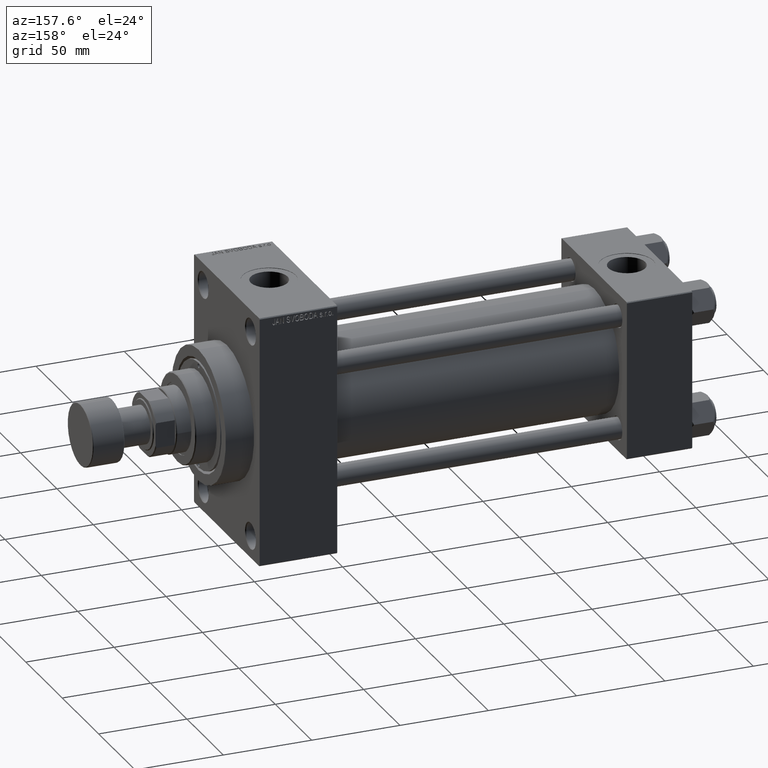
[diagram: clean part render]
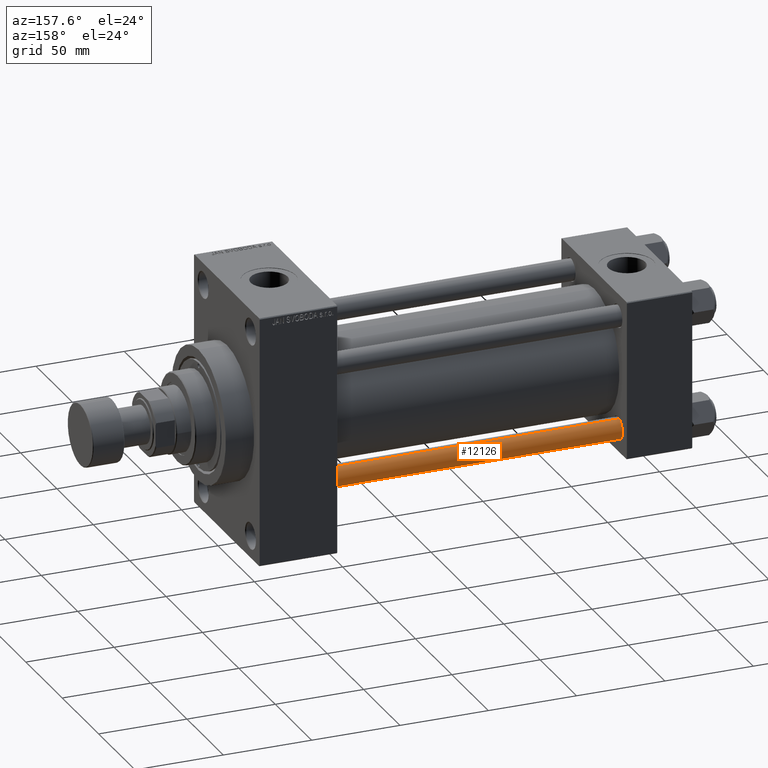
[diagram: same view with one face highlighted and labeled with its STEP entity id]
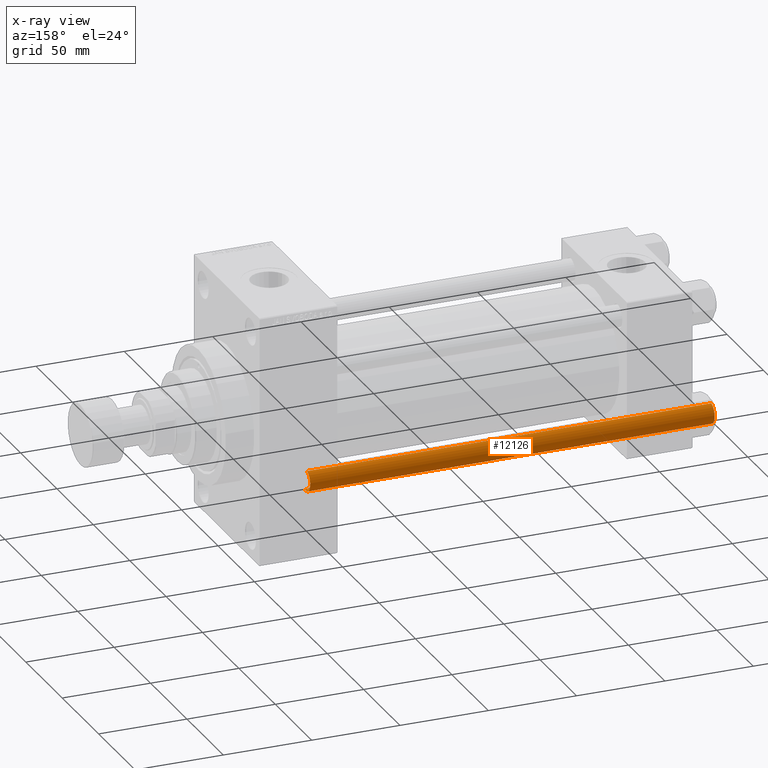
[diagram: x-ray of the same camera — body ghosted, the highlighted face saturated]
A machine part, auxiliary view. The second image highlights one B-rep face of the part: STEP entity #12126.
The next image is the same camera in x-ray: the body ghosted, the highlighted face saturated — about 0% of this face is hidden behind the body in this view.
In plain terms, the highlighted cylindrical surface (edge-blend (fillet) strip) has radius 6 mm, axis along (1, -0, 0).
Its self-contained STEP definition (entity closure, byte-faithful):
#728 = DIRECTION ( 'NONE',  ( -0.000000000000000000, -0.000000000000000000, 1.000000000000000000 ) ) ;
#1340 = AXIS2_PLACEMENT_3D ( 'NONE', #22785, #44809, #16249 ) ;
#3575 = VERTEX_POINT ( 'NONE', #33985 ) ;
#4346 = CARTESIAN_POINT ( 'NONE',  ( -6.000000000000000888, 0.000000000000000000, 0.4999999999999726885 ) ) ;
#6235 = AXIS2_PLACEMENT_3D ( 'NONE', #26402, #728, #40711 ) ;
#7782 = CIRCLE ( 'NONE', #6235, 6.000000000000000888 ) ;
#10700 = DIRECTION ( 'NONE',  ( 0.000000000000000000, 0.000000000000000000, -1.000000000000000000 ) ) ;
#10940 = DIRECTION ( 'NONE',  ( 1.000000000000000000, 0.000000000000000000, 0.000000000000000000 ) ) ;
#10988 = ORIENTED_EDGE ( 'NONE', *, *, #19955, .F. ) ;
#11099 = ORIENTED_EDGE ( 'NONE', *, *, #29875, .T. ) ;
#12126 = ADVANCED_FACE ( 'NONE', ( #23009 ), #38269, .T. ) ;
#14346 = VERTEX_POINT ( 'NONE', #47763 ) ;
#14379 = VECTOR ( 'NONE', #18741, 1000.000000000000000 ) ;
#14878 = LINE ( 'NONE', #37142, #14379 ) ;
#16249 = DIRECTION ( 'NONE',  ( -1.000000000000000000, 0.000000000000000000, 0.000000000000000000 ) ) ;
#16364 = ORIENTED_EDGE ( 'NONE', *, *, #38075, .T. ) ;
#18741 = DIRECTION ( 'NONE',  ( -0.000000000000000000, -0.000000000000000000, -1.000000000000000000 ) ) ;
#19258 = VECTOR ( 'NONE', #46288, 1000.000000000000000 ) ;
#19955 = EDGE_CURVE ( 'NONE', #30873, #23052, #30576, .T. ) ;
#22785 = CARTESIAN_POINT ( 'NONE',  ( 0.000000000000000000, 0.000000000000000000, 230.0000000000000000 ) ) ;
#23009 = FACE_OUTER_BOUND ( 'NONE', #28179, .T. ) ;
#23033 = EDGE_CURVE ( 'NONE', #14346, #23052, #7782, .T. ) ;
#23052 = VERTEX_POINT ( 'NONE', #4346 ) ;
#23295 = CARTESIAN_POINT ( 'NONE',  ( -6.000000000000000888, 0.000000000000000000, 230.0000000000000000 ) ) ;
#24905 = CARTESIAN_POINT ( 'NONE',  ( -6.000000000000000888, 0.000000000000000000, 229.5000000000000284 ) ) ;
#26402 = CARTESIAN_POINT ( 'NONE',  ( 0.000000000000000000, 0.000000000000000000, 0.4999999999999726885 ) ) ;
#28179 = EDGE_LOOP ( 'NONE', ( #11099, #16364, #41391, #10988 ) ) ;
#29875 = EDGE_CURVE ( 'NONE', #30873, #3575, #45862, .T. ) ;
#30576 = LINE ( 'NONE', #23295, #19258 ) ;
#30873 = VERTEX_POINT ( 'NONE', #24905 ) ;
#32980 = CARTESIAN_POINT ( 'NONE',  ( 0.000000000000000000, 0.000000000000000000, 229.5000000000000284 ) ) ;
#33985 = CARTESIAN_POINT ( 'NONE',  ( 6.000000000000000888, 7.347880794884120722E-16, 229.5000000000000284 ) ) ;
#37142 = CARTESIAN_POINT ( 'NONE',  ( 6.000000000000000888, 7.347880794884120722E-16, 230.0000000000000000 ) ) ;
#38075 = EDGE_CURVE ( 'NONE', #3575, #14346, #14878, .T. ) ;
#38269 = CYLINDRICAL_SURFACE ( 'NONE', #1340, 6.000000000000000888 ) ;
#38938 = AXIS2_PLACEMENT_3D ( 'NONE', #32980, #10700, #10940 ) ;
#40711 = DIRECTION ( 'NONE',  ( 1.000000000000000000, 0.000000000000000000, 0.000000000000000000 ) ) ;
#41391 = ORIENTED_EDGE ( 'NONE', *, *, #23033, .T. ) ;
#44809 = DIRECTION ( 'NONE',  ( -0.000000000000000000, -0.000000000000000000, -1.000000000000000000 ) ) ;
#45862 = CIRCLE ( 'NONE', #38938, 6.000000000000000888 ) ;
#46288 = DIRECTION ( 'NONE',  ( -0.000000000000000000, -0.000000000000000000, -1.000000000000000000 ) ) ;
#47763 = CARTESIAN_POINT ( 'NONE',  ( 6.000000000000000888, 7.347880794884120722E-16, 0.4999999999999726885 ) ) ;